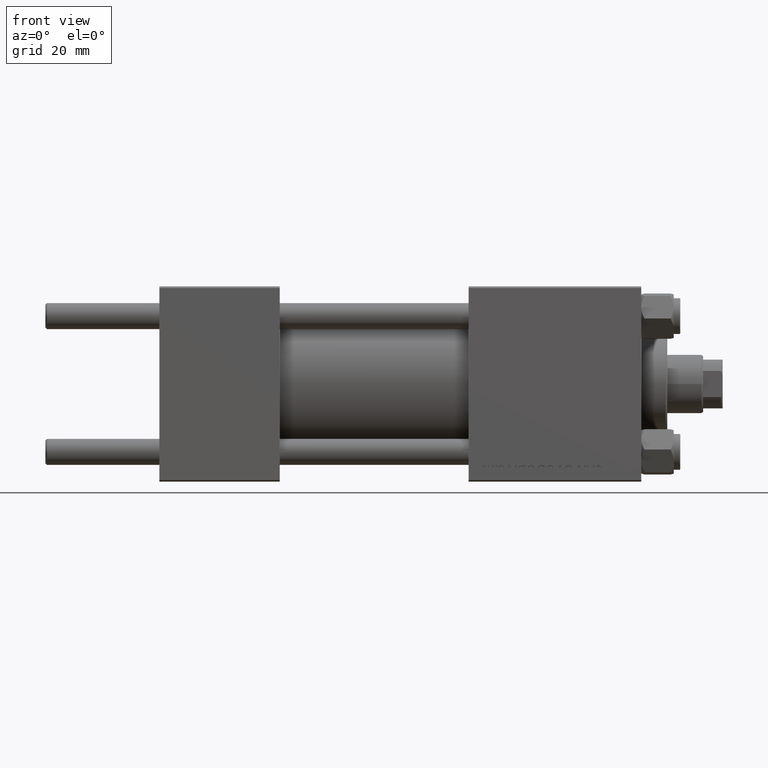
[diagram: clean part render]
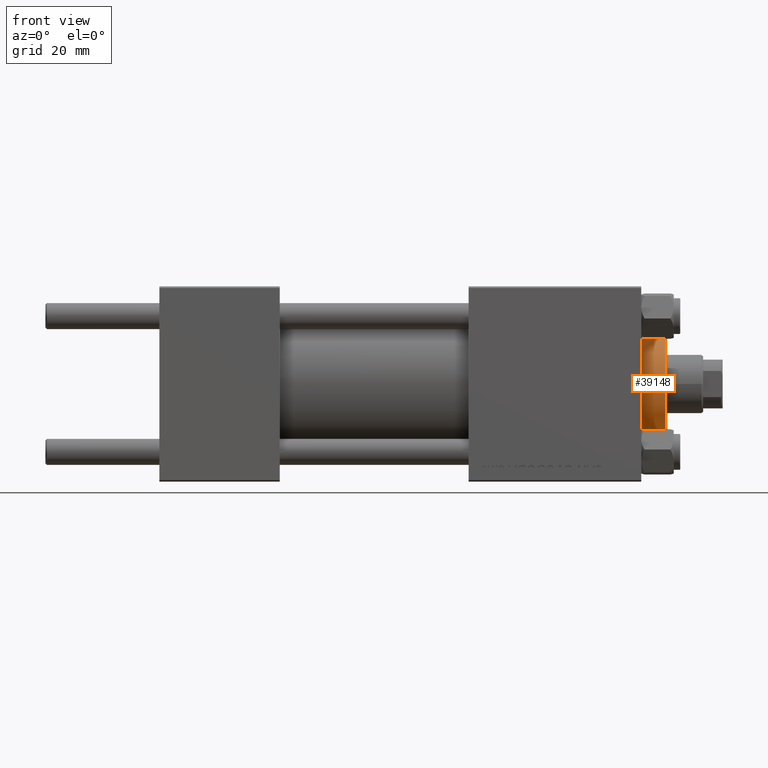
[diagram: same view with one face highlighted and labeled with its STEP entity id]
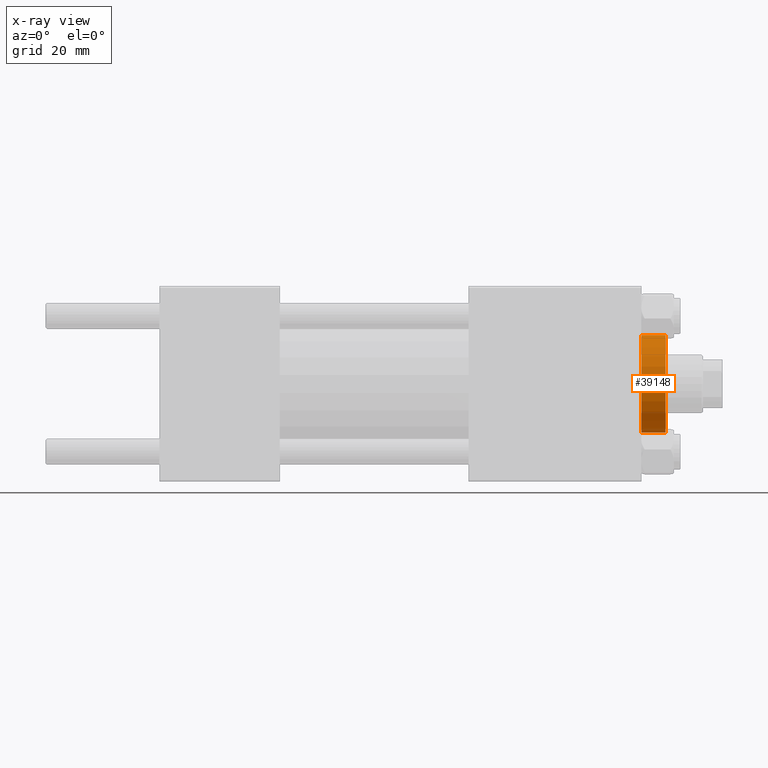
[diagram: x-ray of the same camera — body ghosted, the highlighted face saturated]
A machine part, front view. The second image highlights one B-rep face of the part: STEP entity #39148.
The next image is the same camera in x-ray: the body ghosted, the highlighted face saturated — about 0% of this face is hidden behind the body in this view.
In plain terms, the highlighted cylindrical surface (partial cylindrical patch) has radius 15 mm, axis along (-1, -0, 0).
Its self-contained STEP definition (entity closure, byte-faithful):
#4679 = EDGE_CURVE ( 'NONE', #34959, #43437, #10025, .T. ) ;
#5059 = CARTESIAN_POINT ( 'NONE',  ( 15.00000000000000000, 1.836970198721029589E-15, 36.69999999999999574 ) ) ;
#5228 = CARTESIAN_POINT ( 'NONE',  ( -15.00000000000000000, 0.000000000000000000, 36.69999999999999574 ) ) ;
#7947 = CIRCLE ( 'NONE', #33873, 15.00000000000000000 ) ;
#10025 = CIRCLE ( 'NONE', #49597, 15.00000000000000000 ) ;
#16569 = CARTESIAN_POINT ( 'NONE',  ( 0.000000000000000000, 0.000000000000000000, 36.20000000000000284 ) ) ;
#16848 = VECTOR ( 'NONE', #16885, 1000.000000000000000 ) ;
#16885 = DIRECTION ( 'NONE',  ( -0.000000000000000000, -0.000000000000000000, -1.000000000000000000 ) ) ;
#16961 = DIRECTION ( 'NONE',  ( -0.000000000000000000, -0.000000000000000000, -1.000000000000000000 ) ) ;
#17106 = ORIENTED_EDGE ( 'NONE', *, *, #4679, .T. ) ;
#17599 = DIRECTION ( 'NONE',  ( 0.000000000000000000, 0.000000000000000000, 1.000000000000000000 ) ) ;
#17798 = VERTEX_POINT ( 'NONE', #36038 ) ;
#21637 = FACE_OUTER_BOUND ( 'NONE', #42049, .T. ) ;
#22931 = CARTESIAN_POINT ( 'NONE',  ( -15.00000000000000000, 0.000000000000000000, 28.69999999999999929 ) ) ;
#23806 = ORIENTED_EDGE ( 'NONE', *, *, #25374, .F. ) ;
#24267 = CARTESIAN_POINT ( 'NONE',  ( 15.00000000000000000, 1.836970198721029589E-15, 28.69999999999999929 ) ) ;
#24687 = CYLINDRICAL_SURFACE ( 'NONE', #26427, 15.00000000000000000 ) ;
#25374 = EDGE_CURVE ( 'NONE', #36443, #43437, #31667, .T. ) ;
#26427 = AXIS2_PLACEMENT_3D ( 'NONE', #48692, #47704, #37080 ) ;
#30656 = ORIENTED_EDGE ( 'NONE', *, *, #47635, .T. ) ;
#31667 = LINE ( 'NONE', #5059, #36596 ) ;
#32248 = ORIENTED_EDGE ( 'NONE', *, *, #47864, .T. ) ;
#33873 = AXIS2_PLACEMENT_3D ( 'NONE', #16569, #36556, #43386 ) ;
#34959 = VERTEX_POINT ( 'NONE', #22931 ) ;
#36038 = CARTESIAN_POINT ( 'NONE',  ( -15.00000000000000000, 0.000000000000000000, 36.20000000000000284 ) ) ;
#36443 = VERTEX_POINT ( 'NONE', #38518 ) ;
#36556 = DIRECTION ( 'NONE',  ( 0.000000000000000000, 0.000000000000000000, -1.000000000000000000 ) ) ;
#36596 = VECTOR ( 'NONE', #16961, 1000.000000000000000 ) ;
#36841 = CARTESIAN_POINT ( 'NONE',  ( 0.000000000000000000, 0.000000000000000000, 28.69999999999999929 ) ) ;
#37080 = DIRECTION ( 'NONE',  ( -1.000000000000000000, 0.000000000000000000, 0.000000000000000000 ) ) ;
#38518 = CARTESIAN_POINT ( 'NONE',  ( 15.00000000000000000, 1.836970198721029589E-15, 36.20000000000000284 ) ) ;
#39148 = ADVANCED_FACE ( 'NONE', ( #21637 ), #24687, .T. ) ;
#39911 = LINE ( 'NONE', #5228, #16848 ) ;
#42049 = EDGE_LOOP ( 'NONE', ( #23806, #32248, #30656, #17106 ) ) ;
#43386 = DIRECTION ( 'NONE',  ( 1.000000000000000000, 0.000000000000000000, 0.000000000000000000 ) ) ;
#43437 = VERTEX_POINT ( 'NONE', #24267 ) ;
#47635 = EDGE_CURVE ( 'NONE', #17798, #34959, #39911, .T. ) ;
#47704 = DIRECTION ( 'NONE',  ( -0.000000000000000000, -0.000000000000000000, -1.000000000000000000 ) ) ;
#47864 = EDGE_CURVE ( 'NONE', #36443, #17798, #7947, .T. ) ;
#48458 = DIRECTION ( 'NONE',  ( 1.000000000000000000, 0.000000000000000000, 0.000000000000000000 ) ) ;
#48692 = CARTESIAN_POINT ( 'NONE',  ( 0.000000000000000000, 0.000000000000000000, 36.69999999999999574 ) ) ;
#49597 = AXIS2_PLACEMENT_3D ( 'NONE', #36841, #17599, #48458 ) ;